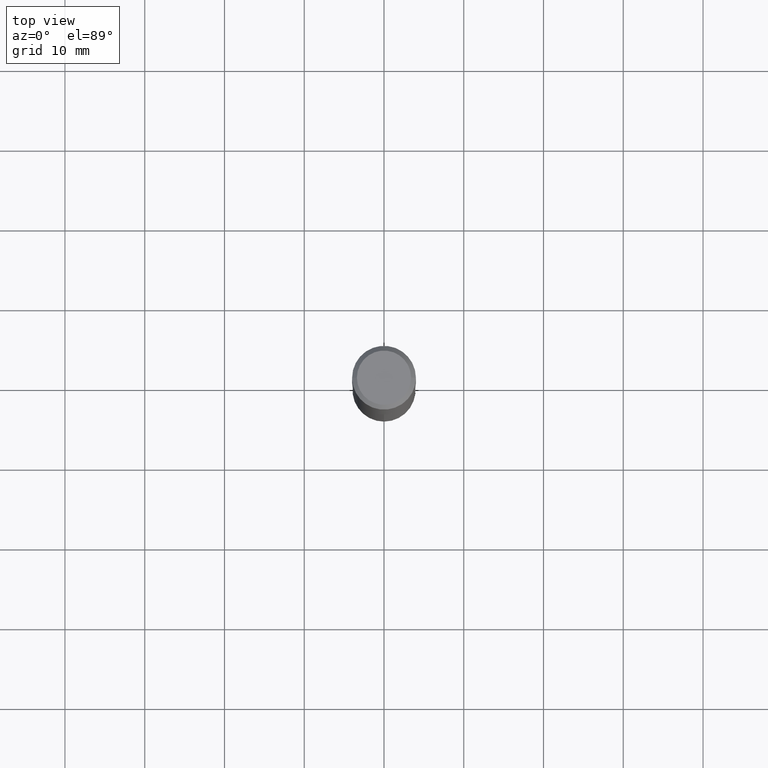
[diagram: clean part render]
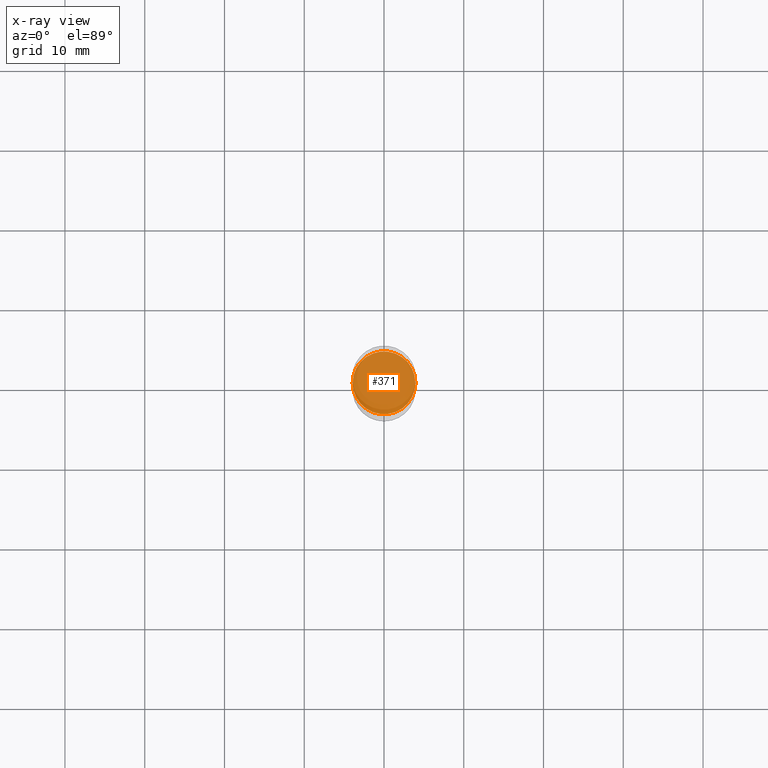
[diagram: x-ray — body ghosted, one internal face saturated and labeled with its STEP entity id]
A machine part, top view, then the same camera in x-ray: the body is ghosted and one INTERNAL B-rep face — a face not visible from any outside direction — is saturated and labeled: STEP entity #371.
In plain terms, the highlighted planar face has unit normal (-0, 0, 1).
Its self-contained STEP definition (entity closure, byte-faithful):
#6 = EDGE_CURVE ( 'NONE', #24, #223, #477, .T. ) ;
#13 = PLANE ( 'NONE',  #395 ) ;
#24 = VERTEX_POINT ( 'NONE', #316 ) ;
#43 = ORIENTED_EDGE ( 'NONE', *, *, #267, .F. ) ;
#56 = DIRECTION ( 'NONE',  ( 1.000000000000000000, -6.982962677686263555E-15, 0.000000000000000000 ) ) ;
#65 = DIRECTION ( 'NONE',  ( -2.438088387897960049E-29, 3.491481338843145188E-15, 1.000000000000000000 ) ) ;
#88 = CARTESIAN_POINT ( 'NONE',  ( 3.659399521575439863E-29, -5.224652675444884140E-15, -1.496400000000000396 ) ) ;
#102 = AXIS2_PLACEMENT_3D ( 'NONE', #88, #235, #56 ) ;
#113 = CIRCLE ( 'NONE', #102, 0.1549999999999999989 ) ;
#126 = FACE_OUTER_BOUND ( 'NONE', #331, .T. ) ;
#145 = DIRECTION ( 'NONE',  ( 1.000000000000000000, -6.982962677686263555E-15, 0.000000000000000000 ) ) ;
#165 = DIRECTION ( 'NONE',  ( 1.000000000000000000, -6.982962677686265922E-15, 4.876176775795935793E-29 ) ) ;
#223 = VERTEX_POINT ( 'NONE', #484 ) ;
#235 = DIRECTION ( 'NONE',  ( -2.445468806185136597E-29, 3.491481338843145583E-15, 1.000000000000000000 ) ) ;
#267 = EDGE_CURVE ( 'NONE', #223, #24, #113, .T. ) ;
#278 = CARTESIAN_POINT ( 'NONE',  ( 3.659399521575439863E-29, -5.224652675444884140E-15, -1.496400000000000396 ) ) ;
#313 = CARTESIAN_POINT ( 'NONE',  ( 1.817727659768126357E-29, -7.862031603005661996E-15, -1.496400000000000396 ) ) ;
#316 = CARTESIAN_POINT ( 'NONE',  ( 0.1549999999999999989, -6.307011890486255796E-15, -1.496400000000000396 ) ) ;
#331 = EDGE_LOOP ( 'NONE', ( #407, #43 ) ) ;
#352 = AXIS2_PLACEMENT_3D ( 'NONE', #278, #481, #145 ) ;
#371 = ADVANCED_FACE ( 'NONE', ( #126 ), #13, .F. ) ;
#395 = AXIS2_PLACEMENT_3D ( 'NONE', #313, #65, #165 ) ;
#407 = ORIENTED_EDGE ( 'NONE', *, *, #6, .F. ) ;
#477 = CIRCLE ( 'NONE', #352, 0.1549999999999999989 ) ;
#481 = DIRECTION ( 'NONE',  ( -2.445468806185136597E-29, 3.491481338843145583E-15, 1.000000000000000000 ) ) ;
#484 = CARTESIAN_POINT ( 'NONE',  ( -0.1549999999999999989, -4.120662207842617461E-15, -1.496400000000000396 ) ) ;